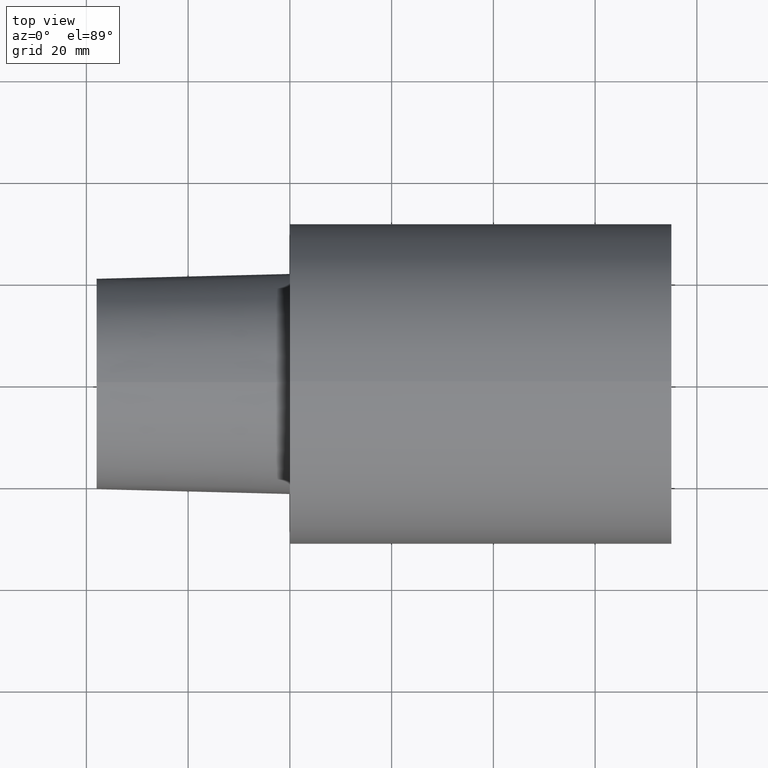
[diagram: clean part render]
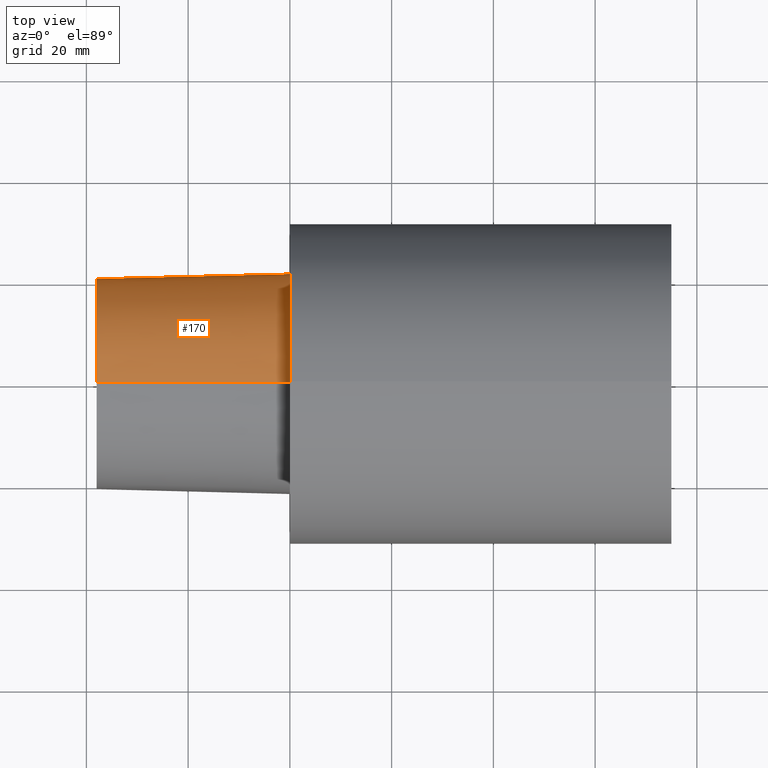
[diagram: same view with one face highlighted and labeled with its STEP entity id]
A machine part, top view. The second image highlights one B-rep face of the part: STEP entity #170.
In plain terms, the highlighted conical surface has half-angle 1.432 deg.
Its self-contained STEP definition (entity closure, byte-faithful):
#7 = CARTESIAN_POINT ( 'NONE',  ( -37.99999996124000035, 0.000000000000000000, 0.000000000000000000 ) ) ;
#12 = EDGE_LOOP ( 'NONE', ( #73, #96, #190, #225 ) ) ;
#21 = LINE ( 'NONE', #100, #189 ) ;
#44 = DIRECTION ( 'NONE',  ( 0.000000000000000000, 0.000000000000000000, 1.000000000000000000 ) ) ;
#60 = DIRECTION ( 'NONE',  ( 0.000000000000000000, 0.000000000000000000, 1.000000000000000000 ) ) ;
#67 = CONICAL_SURFACE ( 'NONE', #185, 21.63061196907898065, 0.02499698951949481940 ) ;
#73 = ORIENTED_EDGE ( 'NONE', *, *, #249, .F. ) ;
#78 = FACE_OUTER_BOUND ( 'NONE', #12, .T. ) ;
#93 = VERTEX_POINT ( 'NONE', #231 ) ;
#96 = ORIENTED_EDGE ( 'NONE', *, *, #199, .T. ) ;
#97 = DIRECTION ( 'NONE',  ( -1.000000000000000000, 0.000000000000000000, 0.000000000000000000 ) ) ;
#100 = CARTESIAN_POINT ( 'NONE',  ( 0.000000000000000000, 2.648985971153096932E-15, 21.63061196907898065 ) ) ;
#111 = VERTEX_POINT ( 'NONE', #156 ) ;
#115 = EDGE_CURVE ( 'NONE', #250, #147, #143, .T. ) ;
#119 = CARTESIAN_POINT ( 'NONE',  ( 0.000000000000000000, 0.000000000000000000, 0.000000000000000000 ) ) ;
#133 = CARTESIAN_POINT ( 'NONE',  ( 0.000000000000000000, 0.000000000000000000, 0.000000000000000000 ) ) ;
#135 = LINE ( 'NONE', #195, #243 ) ;
#143 = CIRCLE ( 'NONE', #172, 21.63061196907898065 ) ;
#147 = VERTEX_POINT ( 'NONE', #174 ) ;
#148 = CIRCLE ( 'NONE', #160, 20.68052847366897140 ) ;
#156 = CARTESIAN_POINT ( 'NONE',  ( -37.99999996124000035, 0.000000000000000000, -20.68052847366897140 ) ) ;
#159 = DIRECTION ( 'NONE',  ( 0.9996875915253454759, 0.000000000000000000, -0.02499438637482059161 ) ) ;
#160 = AXIS2_PLACEMENT_3D ( 'NONE', #7, #201, #44 ) ;
#170 = ADVANCED_FACE ( 'NONE', ( #78 ), #67, .T. ) ;
#172 = AXIS2_PLACEMENT_3D ( 'NONE', #133, #97, #60 ) ;
#174 = CARTESIAN_POINT ( 'NONE',  ( 0.000000000000000000, 0.000000000000000000, -21.63061196907898065 ) ) ;
#175 = DIRECTION ( 'NONE',  ( 0.9996875915253454759, 3.060929527057623083E-18, 0.02499438637482059161 ) ) ;
#180 = CARTESIAN_POINT ( 'NONE',  ( 0.000000000000000000, 2.648985971153096932E-15, 21.63061196907898065 ) ) ;
#185 = AXIS2_PLACEMENT_3D ( 'NONE', #119, #196, #212 ) ;
#189 = VECTOR ( 'NONE', #175, 1000.000000000000114 ) ;
#190 = ORIENTED_EDGE ( 'NONE', *, *, #115, .T. ) ;
#195 = CARTESIAN_POINT ( 'NONE',  ( 0.000000000000000000, 0.000000000000000000, -21.63061196907898065 ) ) ;
#196 = DIRECTION ( 'NONE',  ( 1.000000000000000000, 0.000000000000000000, 0.000000000000000000 ) ) ;
#199 = EDGE_CURVE ( 'NONE', #93, #250, #21, .T. ) ;
#201 = DIRECTION ( 'NONE',  ( -1.000000000000000000, 0.000000000000000000, 0.000000000000000000 ) ) ;
#212 = DIRECTION ( 'NONE',  ( 0.000000000000000000, 0.000000000000000000, -1.000000000000000000 ) ) ;
#225 = ORIENTED_EDGE ( 'NONE', *, *, #244, .F. ) ;
#231 = CARTESIAN_POINT ( 'NONE',  ( -37.99999996124000035, 2.590810135574270981E-15, 20.68052847366897140 ) ) ;
#243 = VECTOR ( 'NONE', #159, 1000.000000000000114 ) ;
#244 = EDGE_CURVE ( 'NONE', #111, #147, #135, .T. ) ;
#249 = EDGE_CURVE ( 'NONE', #93, #111, #148, .T. ) ;
#250 = VERTEX_POINT ( 'NONE', #180 ) ;